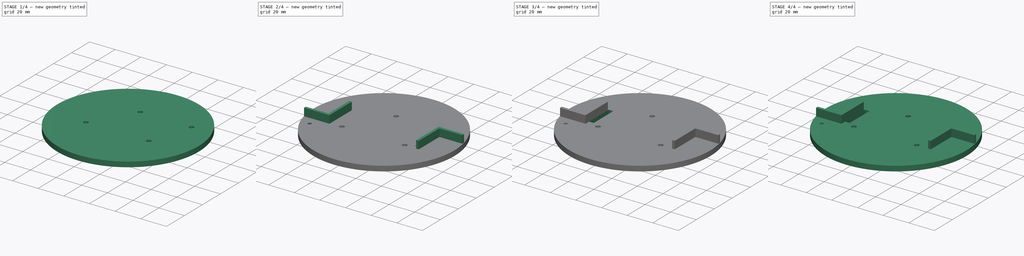
[diagram: build sequence overview — one tinted view per stage of 4, left to right]
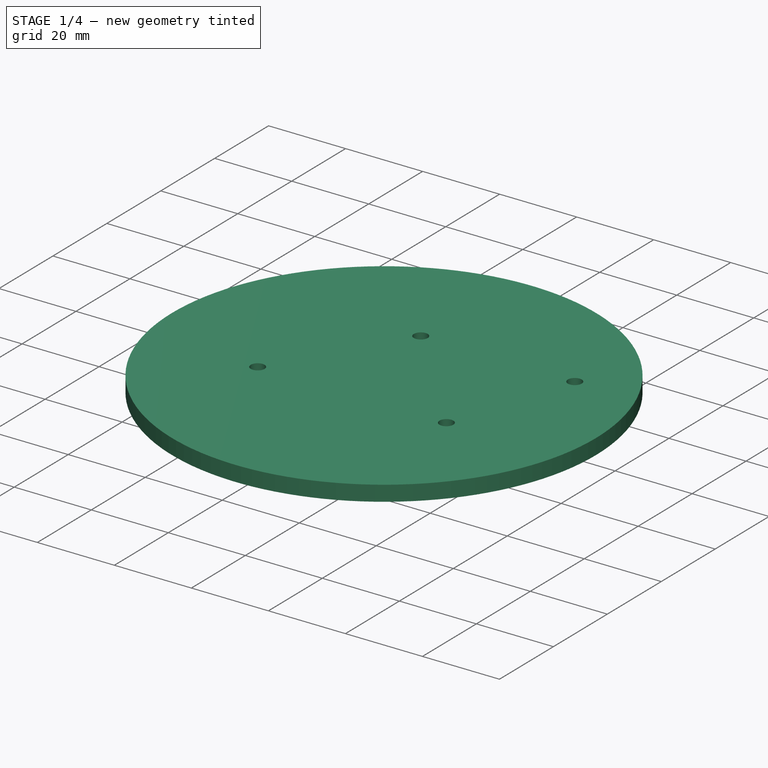
[diagram: stage 1 of 4 — iso view after this stage's code; geometry added in this stage tinted green]
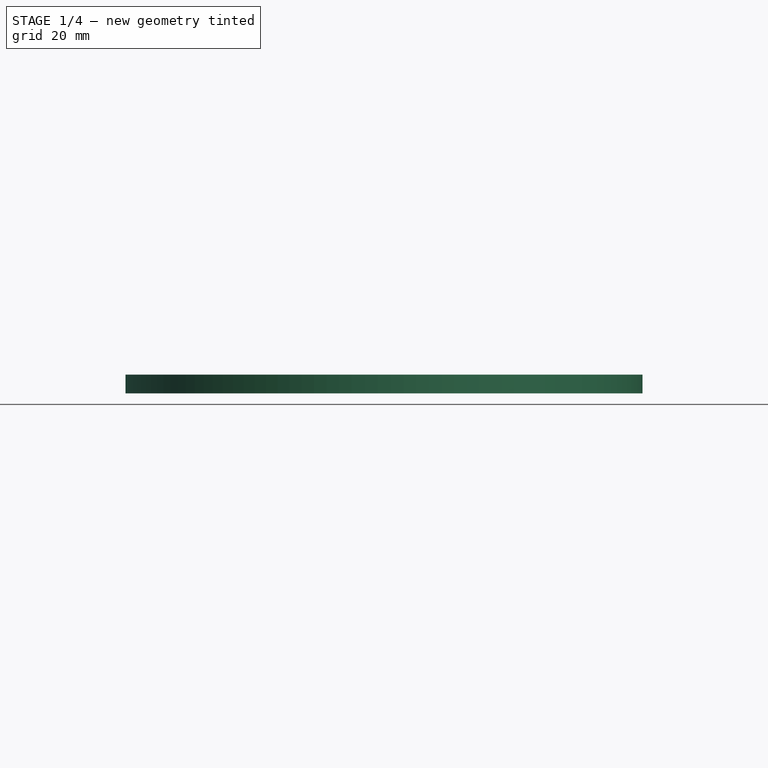
[diagram: stage 1 of 4 — front view after this stage's code; geometry added in this stage tinted green]
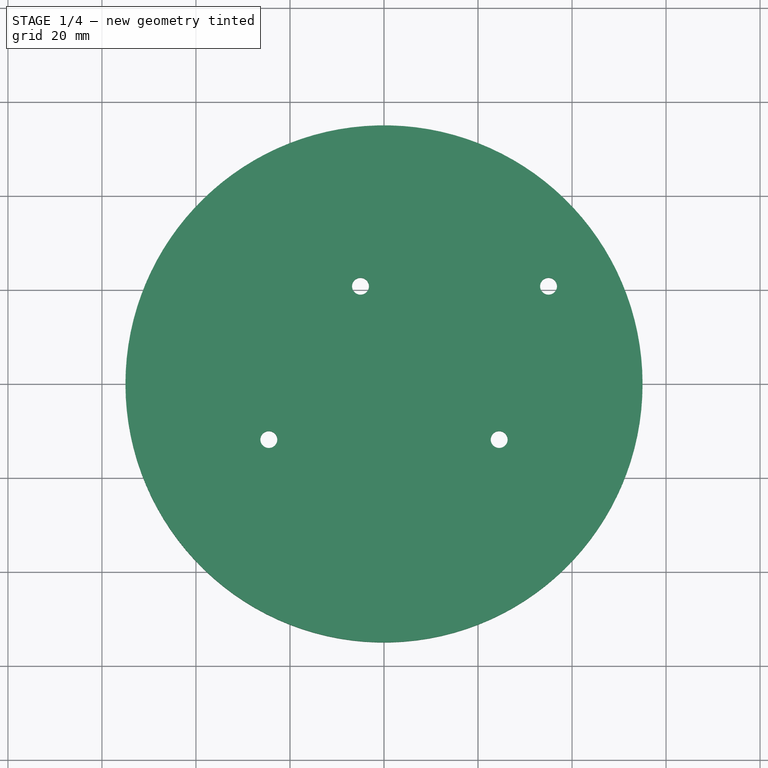
[diagram: stage 1 of 4 — top view after this stage's code; geometry added in this stage tinted green]
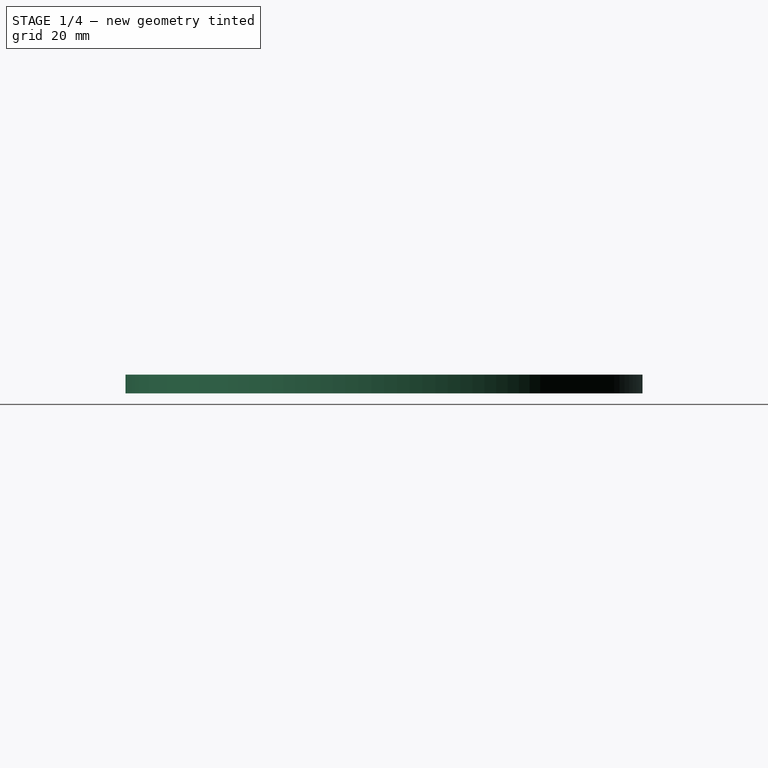
[diagram: stage 1 of 4 — right view after this stage's code; geometry added in this stage tinted green]
FCSTD DOCUMENT  (FreeCAD 0.21R33668 +26 (Git))
Label: board_bot
License: All rights reserved
LicenseURL: https://en.wikipedia.org/wiki/All_rights_reserved
objects: Sketcher::SketchObject×5, PartDesign::Fillet×4, PartDesign::Pocket×3, PartDesign::Pad×2, PartDesign::Mirrored×1, PartDesign::Body×1
note: 25 computed .brp shape members not serialized (recipe doc carries the construction recipe); baked Part::Feature solids carry a one-line shape summary decoded from their .brp

FEATURE [Sketcher::SketchObject] Sketch
  FullyConstrained = false
  MapMode = 5
  Support = -> [XY_Plane]
  sketch-geometry (2):
    g0: Circle CenterX=0 CenterY=0 CenterZ=0 NormalX=0 NormalY=0 NormalZ=1 AngleXU=0 Radius=55
    g1: GeomPoint X=-46.4818 Y=29.4015 Z=0
  constraints (3):
    c: Coincident(g0,g-1)
    c: PointOnObject(g1,g0)
    c: Distance(g1,g0) = 55
FEATURE [PartDesign::Pad] Pad
  Direction = (0,0,1)
  Length = 4
  Length2 = 10
  Profile = -> Sketch
  ReferenceAxis = -> Sketch [N_Axis]
  Type = 0
FEATURE [Sketcher::SketchObject] Sketch001
  FullyConstrained = false
  MapMode = 5
  Placement = pos=(0,0,4) rot=(0,0,1;0rad)
  Support = -> [Pad]
  sketch-geometry (27):
    g0: LineSegment StartX=35.5 StartY=11 StartZ=0 EndX=35.5 EndY=-54 EndZ=0
    g1: LineSegment StartX=35.5 StartY=-54 StartZ=0 EndX=55 EndY=-54 EndZ=0
    g2: LineSegment StartX=55 StartY=-54 StartZ=0 EndX=55 EndY=11 EndZ=0
    g3: LineSegment StartX=55 StartY=11 StartZ=0 EndX=35.5 EndY=11 EndZ=0
    g4: GeomPoint X=35.5 Y=0 Z=0
    g5: LineSegment StartX=0 StartY=0 StartZ=0 EndX=35.5 EndY=0 EndZ=0
    g6: LineSegment StartX=33.5 StartY=0 StartZ=0 EndX=33.5 EndY=13 EndZ=0
    g7: LineSegment StartX=33.5 StartY=13 StartZ=0 EndX=53.3454 EndY=13 EndZ=0
    g8: LineSegment StartX=53.3454 StartY=13 StartZ=0 EndX=53.3454 EndY=11 EndZ=0
    g9: LineSegment StartX=53.3454 StartY=11 StartZ=0 EndX=35.5 EndY=11 EndZ=0
    g10: LineSegment StartX=35.5 StartY=11 StartZ=0 EndX=35.5 EndY=-0.0056844 EndZ=0
    g11: LineSegment StartX=-55 StartY=54 StartZ=0 EndX=-35.5 EndY=54 EndZ=0
    g12: LineSegment StartX=-35.5 StartY=54 StartZ=0 EndX=-35.5 EndY=-11 EndZ=0
    g13: LineSegment StartX=-35.5 StartY=-11 StartZ=0 EndX=-55 EndY=-11 EndZ=0
    g14: LineSegment StartX=-55 StartY=-11 StartZ=0 EndX=-55 EndY=54 EndZ=0
    g15: LineSegment StartX=-35.5 StartY=0 StartZ=0 EndX=0 EndY=0 EndZ=0
    g16: LineSegment StartX=-33.5 StartY=0 StartZ=0 EndX=-33.5 EndY=-13 EndZ=0
    g17: LineSegment StartX=-33.5 StartY=-13 StartZ=0 EndX=-53.2936 EndY=-13 EndZ=0
    g18: LineSegment StartX=-53.2936 StartY=-13 StartZ=0 EndX=-53.2936 EndY=-11 EndZ=0
    g19: LineSegment StartX=-53.2936 StartY=-11 StartZ=0 EndX=-35.5 EndY=-11 EndZ=0
    g20: LineSegment StartX=-35.5 StartY=-11 StartZ=0 EndX=-35.5 EndY=0.00121246 EndZ=0
    g21: LineSegment StartX=-33.5 StartY=0 StartZ=0 EndX=-33.5 EndY=12 EndZ=0
    g22: LineSegment StartX=-35.5 StartY=0.00121246 StartZ=0 EndX=-35.5 EndY=12 EndZ=0
    g23: LineSegment StartX=-35.5 StartY=12 StartZ=0 EndX=-33.5 EndY=12 EndZ=0
    g24: LineSegment StartX=33.5 StartY=0 StartZ=0 EndX=33.5 EndY=-12 EndZ=0
    g25: LineSegment StartX=35.5 StartY=-0.0056844 StartZ=0 EndX=35.5 EndY=-12 EndZ=0
    g26: LineSegment StartX=33.5 StartY=-12 StartZ=0 EndX=35.5 EndY=-12 EndZ=0
  constraints (73):
    c: Vertical(g0)
    c: Coincident(g1,g0)
    c: Horizontal(g1)
    c: Coincident(g2,g1)
    c: Vertical(g2)
    c: Coincident(g3,g2)
    c: Coincident(g3,g0)
    c: Horizontal(g3)
    c: Distance(g3) = 19.5
    c: Distance(g2) = 65
    c: PointOnObject(g4,g0)
    c: Distance(g0,g4) = 11
    c: Coincident(g5,g-1)
    c: Coincident(g5,g4)
    c: Horizontal(g5)
    c: Distance(g5) = 35.5
    c: PointOnObject(g6,g5)
    c: Vertical(g6)
    c: Coincident(g7,g6)
    c: Horizontal(g7)
    c: Coincident(g8,g7)
    c: PointOnObject(g8,g3)
    c: Vertical(g8)
    c: Coincident(g9,g8)
    c: Coincident(g9,g0)
    c: Coincident(g10,g9)
    c: Distance(g8) = 2
    c: Coincident(g11,g12)
    c: Coincident(g12,g13)
    c: Coincident(g13,g14)
    c: Coincident(g14,g11)
    c: Horizontal(g11)
    c: Horizontal(g13)
    c: Vertical(g12)
    c: Vertical(g14)
    c: Distance(g14) = 65
    c: Distance(g11) = 19.5
    c: PointOnObject(g15,g12)
    c: Coincident(g15,g5)
    c: Horizontal(g15)
    c: Distance(g15) = 35.5
    c: Distance(g15,g12) = 11
    c: PointOnObject(g16,g15)
    c: Vertical(g16)
    c: Coincident(g17,g16)
    c: Horizontal(g17)
    c: Coincident(g18,g17)
    c: PointOnObject(g18,g13)
    c: Vertical(g18)
    c: Distance(g18) = 2
    c: Coincident(g19,g18)
    c: Coincident(g19,g12)
    c: Coincident(g20,g19)
    c: Coincident(g21,g16)
    c: Vertical(g21)
    c: Coincident(g22,g20)
    c: PointOnObject(g22,g12)
    c: Vertical(g22)
    c: Distance(g20,g16) = 2
    c: Coincident(g23,g22)
    c: Coincident(g23,g21)
    c: Horizontal(g23)
    c: Distance(g21) = 12
    c: Distance(g6,g10) = 2
    c: Coincident(g24,g6)
    c: Vertical(g24)
    c: Coincident(g25,g10)
    c: PointOnObject(g25,g0)
    c: Vertical(g25)
    c: Coincident(g26,g24)
    c: Coincident(g26,g25)
    c: Horizontal(g26)
    c: Distance(g24) = 12
FEATURE [Sketcher::SketchObject] Sketch002
  FullyConstrained = false
  MapMode = 5
  Placement = pos=(0,0,4) rot=(0,0,1;0rad)
  sketch-geometry (29):
    g0: LineSegment StartX=-24.5 StartY=-11.8401 StartZ=0 EndX=24.5 EndY=-11.8401 EndZ=0
    g1: LineSegment StartX=24.5 StartY=-11.8401 StartZ=0 EndX=24.5 EndY=-69.8401 EndZ=0
    g2: LineSegment StartX=24.5 StartY=-69.8401 StartZ=0 EndX=-24.5 EndY=-69.8401 EndZ=0
    g3: LineSegment StartX=-24.5 StartY=-69.8401 StartZ=0 EndX=-24.5 EndY=-11.8401 EndZ=0
    g4: Circle CenterX=-24.5 CenterY=-11.8401 CenterZ=0 NormalX=0 NormalY=0 NormalZ=1 AngleXU=0 Radius=1.8
    g5: Circle CenterX=24.5 CenterY=-11.8401 CenterZ=0 NormalX=0 NormalY=0 NormalZ=1 AngleXU=0 Radius=1.8
    g6: GeomPoint X=24.1833 Y=-13.6121 Z=0
    g7: GeomPoint X=-24.493 Y=-13.6401 Z=0
    g8: LineSegment StartX=-24.5 StartY=-11.8401 StartZ=0 EndX=-24.5 EndY=15.1599 EndZ=0
    g9: LineSegment StartX=24.5 StartY=-11.8401 StartZ=0 EndX=24.5 EndY=15.1599 EndZ=0
    g10: LineSegment StartX=-24.5 StartY=15.1599 StartZ=0 EndX=24.5 EndY=15.1599 EndZ=0
    g11: LineSegment StartX=-10 StartY=67.775 StartZ=0 EndX=40 EndY=67.775 EndZ=0
    g12: LineSegment StartX=40 StartY=67.775 StartZ=0 EndX=40 EndY=15.775 EndZ=0
    g13: LineSegment StartX=40 StartY=15.775 StartZ=0 EndX=-10 EndY=15.775 EndZ=0
    g14: LineSegment StartX=-10 StartY=15.775 StartZ=0 EndX=-10 EndY=67.775 EndZ=0
    g15: LineSegment StartX=-5 StartY=60.775 StartZ=0 EndX=35 EndY=60.775 EndZ=0
    g16: LineSegment StartX=35 StartY=60.775 StartZ=0 EndX=35 EndY=20.775 EndZ=0
    g17: LineSegment StartX=35 StartY=20.775 StartZ=0 EndX=-5 EndY=20.775 EndZ=0
    g18: LineSegment StartX=-5 StartY=20.775 StartZ=0 EndX=-5 EndY=60.775 EndZ=0
    g19: GeomPoint X=-5 Y=15.775 Z=0
    g20: LineSegment StartX=-5 StartY=15.775 StartZ=0 EndX=-5 EndY=20.775 EndZ=0
    g21: Circle CenterX=-5 CenterY=20.775 CenterZ=0 NormalX=0 NormalY=0 NormalZ=1 AngleXU=0 Radius=1.8
    g22: Circle CenterX=35 CenterY=20.775 CenterZ=0 NormalX=0 NormalY=0 NormalZ=1 AngleXU=0 Radius=1.8
    g23: GeomPoint X=-4.69104 Y=19.0017 Z=0
    g24: GeomPoint X=35.3096 Y=19.0018 Z=0
    g25: LineSegment StartX=0 StartY=0 StartZ=0 EndX=24.5 EndY=0 EndZ=0
    g26: GeomPoint X=-5 Y=36.603 Z=0
    g27: GeomPoint X=0 Y=36.603 Z=0
    g28: LineSegment StartX=-5 StartY=36.603 StartZ=0 EndX=0 EndY=36.603 EndZ=0
  constraints (66):
    c: Coincident(g0,g1)
    c: Coincident(g1,g2)
    c: Coincident(g2,g3)
    c: Coincident(g3,g0)
    c: Horizontal(g0)
    c: Horizontal(g2)
    c: Vertical(g1)
    c: Vertical(g3)
    c: Distance(g1) = 58
    c: Distance(g0) = 49
    c: Coincident(g4,g0)
    c: Coincident(g5,g0)
    c: PointOnObject(g6,g5)
    c: PointOnObject(g7,g4)
    c: Distance(g4,g7) = 1.8
    c: Distance(g5,g6) = 1.8
    c: Coincident(g8,g4)
    c: Vertical(g8)
    c: Coincident(g9,g5)
    c: Vertical(g9)
    c: Coincident(g10,g8)
    c: Coincident(g10,g9)
    c: Horizontal(g10)
    c: Distance(g8) = 27
    c: Coincident(g11,g12)
    c: Coincident(g12,g13)
    c: Coincident(g13,g14)
    c: Coincident(g14,g11)
    c: Horizontal(g11)
    c: Horizontal(g13)
    c: Vertical(g12)
    c: Vertical(g14)
    c: Distance(g11) = 50
    c: Distance(g14) = 52
    c: Coincident(g15,g16)
    c: Coincident(g16,g17)
    c: Coincident(g17,g18)
    c: Coincident(g18,g15)
    c: Horizontal(g15)
    c: Horizontal(g17)
    c: Vertical(g16)
    c: Vertical(g18)
    c: Distance(g15) = 40
    c: Distance(g18) = 40
    c: PointOnObject(g19,g13)
    c: Distance(g13,g19) = 5
    c: Coincident(g20,g19)
    c: Coincident(g20,g17)
    c: Vertical(g20)
    c: Distance(g20) = 5
    c: Coincident(g21,g17)
    c: Coincident(g22,g16)
    c: PointOnObject(g23,g21)
    c: PointOnObject(g24,g22)
    c: Distance(g21,g23) = 1.8
    c: Distance(g22,g24) = 1.8
    c: Coincident(g25,g-1)
    c: PointOnObject(g25,g9)
    c: Horizontal(g25)
    c: Distance(g25) = 24.5
    c: PointOnObject(g26,g18)
    c: PointOnObject(g27,g-2)
    c: Coincident(g28,g26)
    c: Coincident(g28,g27)
    c: Horizontal(g28)
    c: Distance(g28) = 5
FEATURE [PartDesign::Pocket] Pocket
  BaseFeature = -> Pad
  Direction = (0,0,-1)
  Length = 5
  Length2 = 5
  Profile = -> Sketch002
  ReferenceAxis = -> Sketch002 [N_Axis]
  Type = 0
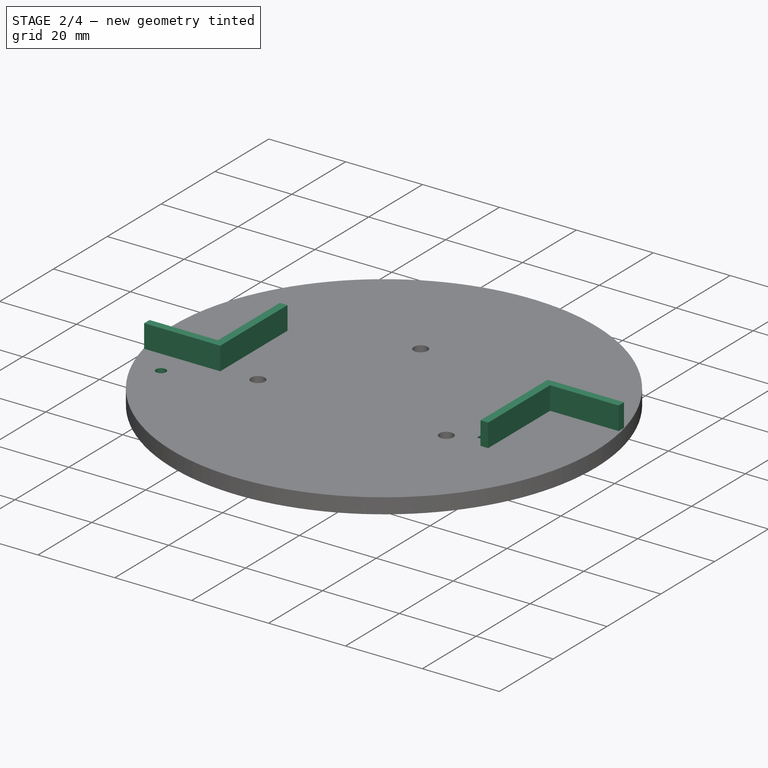
[diagram: stage 2 of 4 — iso view after this stage's code; geometry added in this stage tinted green]
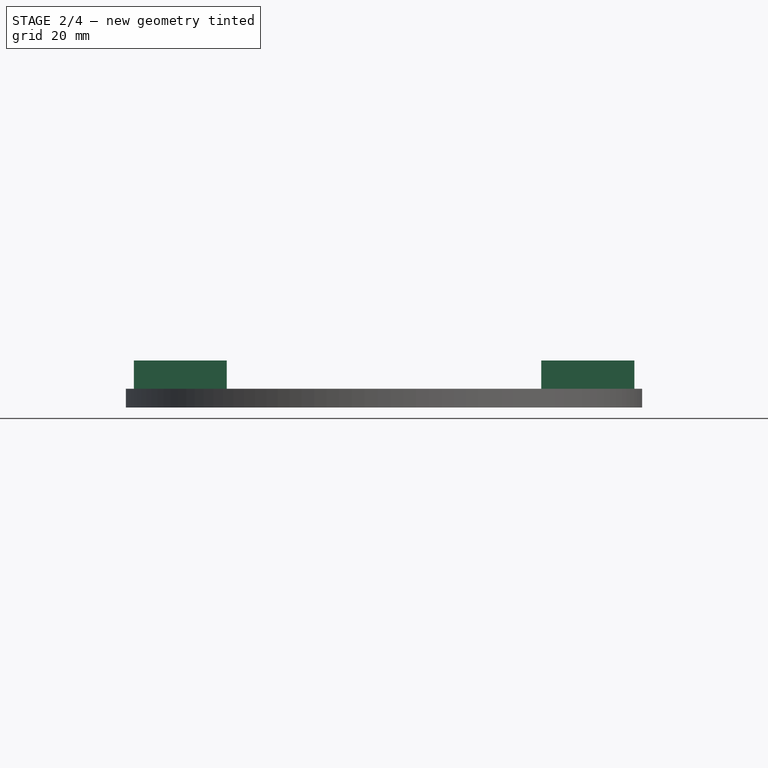
[diagram: stage 2 of 4 — front view after this stage's code; geometry added in this stage tinted green]
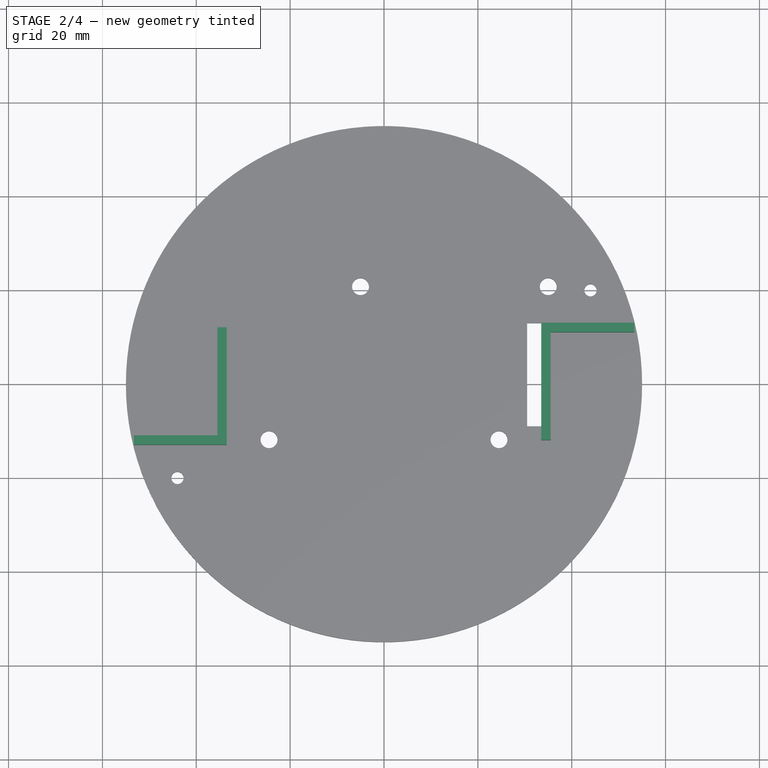
[diagram: stage 2 of 4 — top view after this stage's code; geometry added in this stage tinted green]
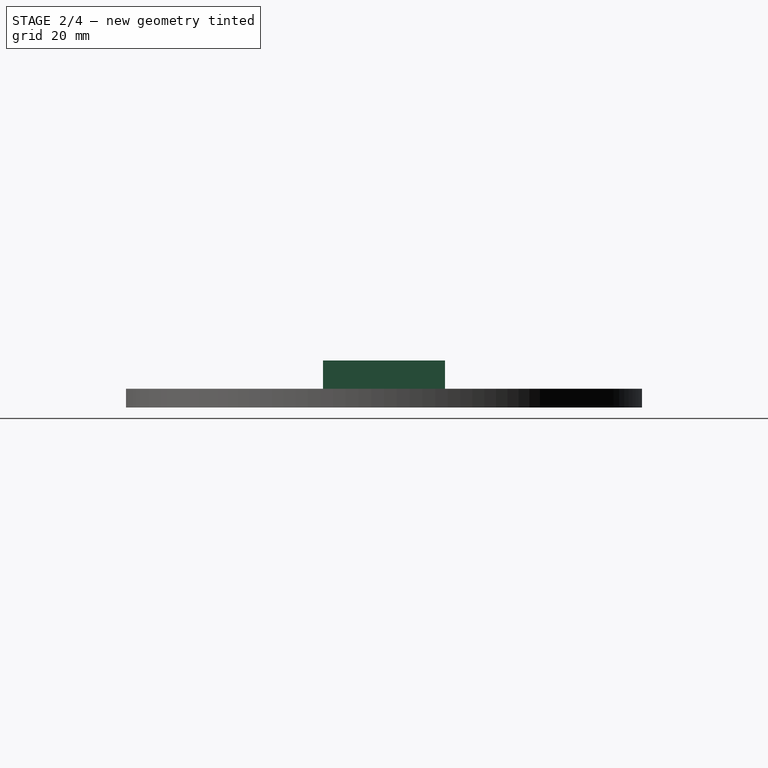
[diagram: stage 2 of 4 — right view after this stage's code; geometry added in this stage tinted green]
FEATURE [PartDesign::Pad] Pad001
  BaseFeature = -> Pocket
  Direction = (0,0,1)
  Length = 6
  Length2 = 10
  Profile = -> Sketch001
  ReferenceAxis = -> Sketch001 [N_Axis]
  Type = 0
FEATURE [Sketcher::SketchObject] Sketch003
  FullyConstrained = false
  MapMode = 5
  Placement = pos=(0,0,4) rot=(0,0,1;0rad)
  Support = -> [Pad001]
  sketch-geometry (10):
    g0: Circle CenterX=44 CenterY=20 CenterZ=0 NormalX=0 NormalY=0 NormalZ=1 AngleXU=0 Radius=5
    g1: Circle CenterX=-44 CenterY=-20 CenterZ=0 NormalX=0 NormalY=0 NormalZ=1 AngleXU=0 Radius=5
    g2: GeomPoint X=-39.0947 Y=-19.0316 Z=0
    g3: GeomPoint X=47.6682 Y=23.3977 Z=0
    g4: LineSegment StartX=0 StartY=-20 StartZ=0 EndX=-44 EndY=-20 EndZ=0
    g5: LineSegment StartX=0 StartY=20 StartZ=0 EndX=44 EndY=20 EndZ=0
    g6: Circle CenterX=-44 CenterY=-20 CenterZ=0 NormalX=0 NormalY=0 NormalZ=1 AngleXU=0 Radius=1.3
    g7: GeomPoint X=-43.3125 Y=-18.8967 Z=0
    g8: Circle CenterX=44 CenterY=20 CenterZ=0 NormalX=0 NormalY=0 NormalZ=1 AngleXU=0 Radius=1.3
    g9: GeomPoint X=43.0923 Y=20.9307 Z=0
  constraints (20):
    c: PointOnObject(g2,g1)
    c: PointOnObject(g3,g0)
    c: Distance(g3,g0) = 5
    c: Distance(g1,g2) = 5
    c: PointOnObject(g4,g-2)
    c: Coincident(g4,g1)
    c: Horizontal(g4)
    c: PointOnObject(g5,g-2)
    c: Coincident(g5,g0)
    c: Horizontal(g5)
    c: Distance(g4) = 44
    c: Distance(g5) = 44
    c: Distance(g5,g-1) = 20
    c: Distance(g-1,g4) = 20
    c: Coincident(g6,g1)
    c: PointOnObject(g7,g6)
    c: Coincident(g8,g0)
    c: PointOnObject(g9,g8)
    c: Distance(g9,g8) = 1.3
    c: Distance(g7,g6) = 1.3
FEATURE [Sketcher::SketchObject] Sketch004
  FullyConstrained = true
  MapMode = 5
  Placement = pos=(0,0,4) rot=(0,0,1;0rad)
  sketch-geometry (5):
    g0: LineSegment StartX=30.5 StartY=13 StartZ=0 EndX=33.5 EndY=13 EndZ=0
    g1: LineSegment StartX=33.5 StartY=13 StartZ=0 EndX=33.5 EndY=-9 EndZ=0
    g2: LineSegment StartX=33.5 StartY=-9 StartZ=0 EndX=30.5 EndY=-9 EndZ=0
    g3: LineSegment StartX=30.5 StartY=-9 StartZ=0 EndX=30.5 EndY=13 EndZ=0
    g4: LineSegment StartX=0 StartY=0 StartZ=0 EndX=30.5 EndY=0 EndZ=0
  constraints (15):
    c: Coincident(g0,g1)
    c: Coincident(g1,g2)
    c: Coincident(g2,g3)
    c: Coincident(g3,g0)
    c: Horizontal(g0)
    c: Horizontal(g2)
    c: Vertical(g1)
    c: Vertical(g3)
    c: Distance(g1) = 22
    c: Distance(g0) = 3
    c: Coincident(g4,g-1)
    c: PointOnObject(g4,g3)
    c: Horizontal(g4)
    c: Distance(g4) = 30.5
    c: Distance(g0,g4) = 13
FEATURE [PartDesign::Pocket] Pocket001
  BaseFeature = -> Pad001
  Direction = (0,0,-1)
  Length = 5
  Length2 = 5
  Profile = -> Sketch003
  ReferenceAxis = -> Sketch003 [N_Axis]
  Type = 0
FEATURE [PartDesign::Pocket] Pocket002
  BaseFeature = -> Pocket001
  Direction = (0,0,-1)
  Length = 5
  Length2 = 5
  Profile = -> Sketch004
  ReferenceAxis = -> Sketch004 [N_Axis]
  Type = 0
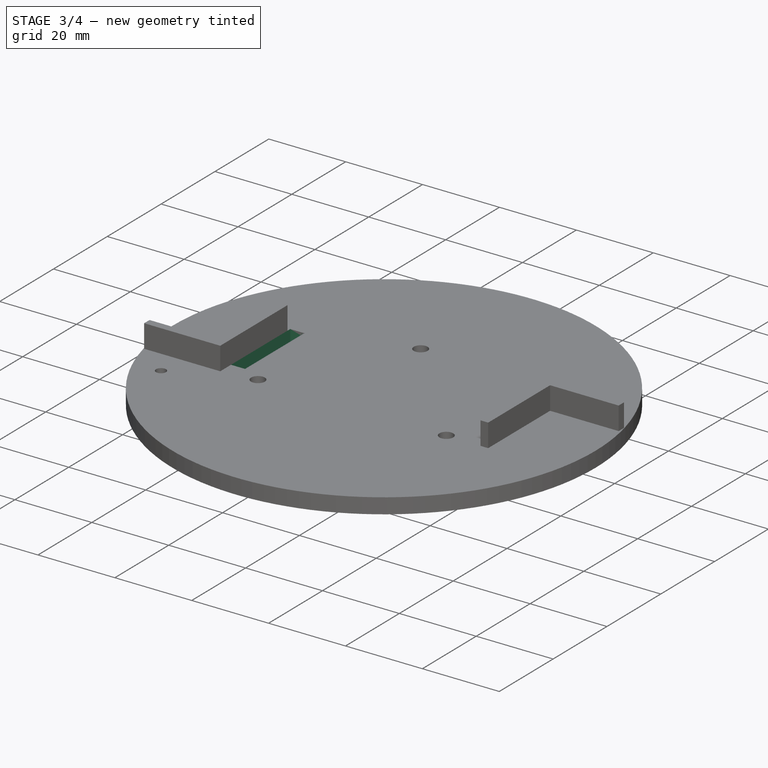
[diagram: stage 3 of 4 — iso view after this stage's code; geometry added in this stage tinted green]
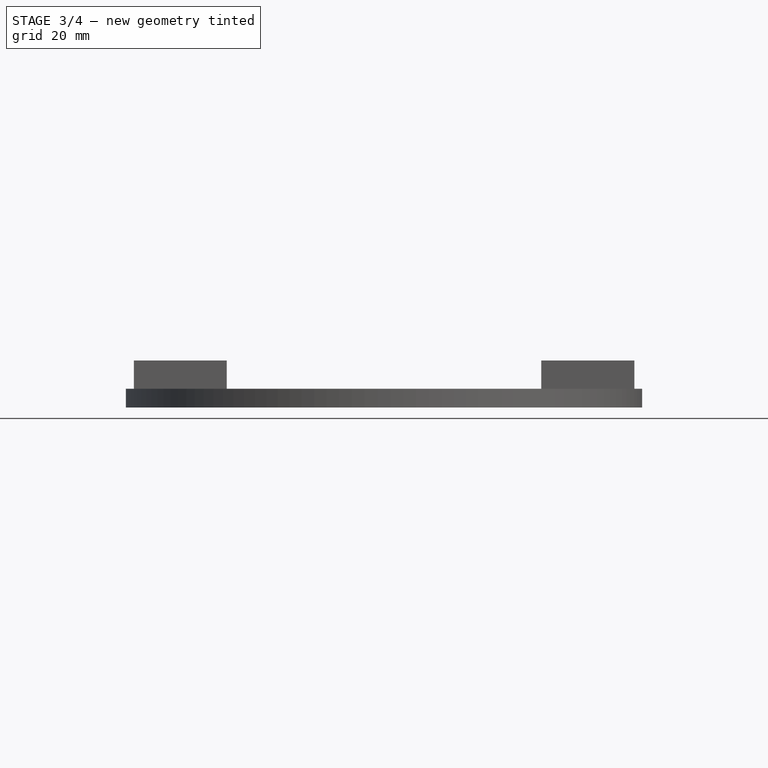
[diagram: stage 3 of 4 — front view after this stage's code; geometry added in this stage tinted green]
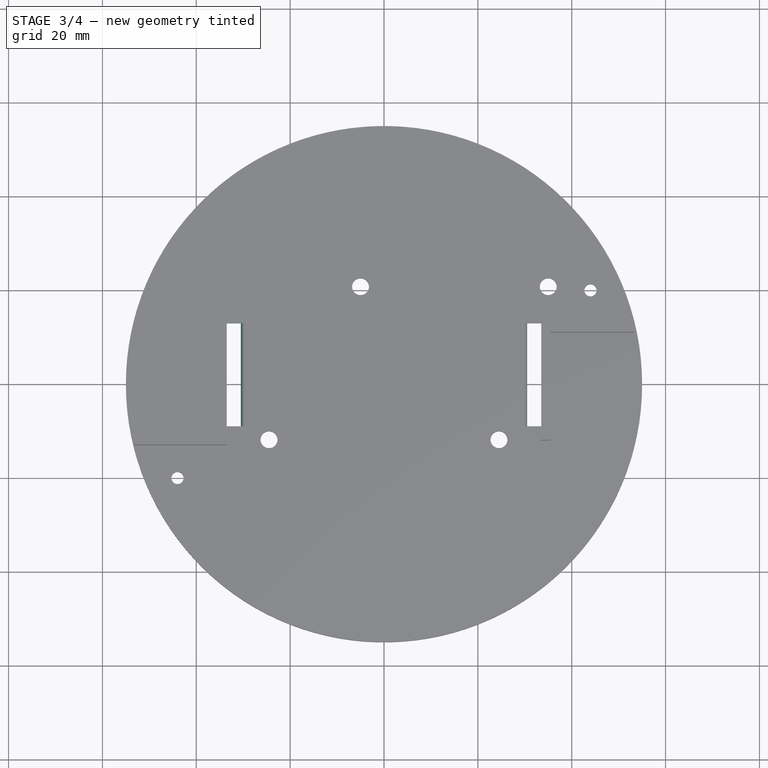
[diagram: stage 3 of 4 — top view after this stage's code; geometry added in this stage tinted green]
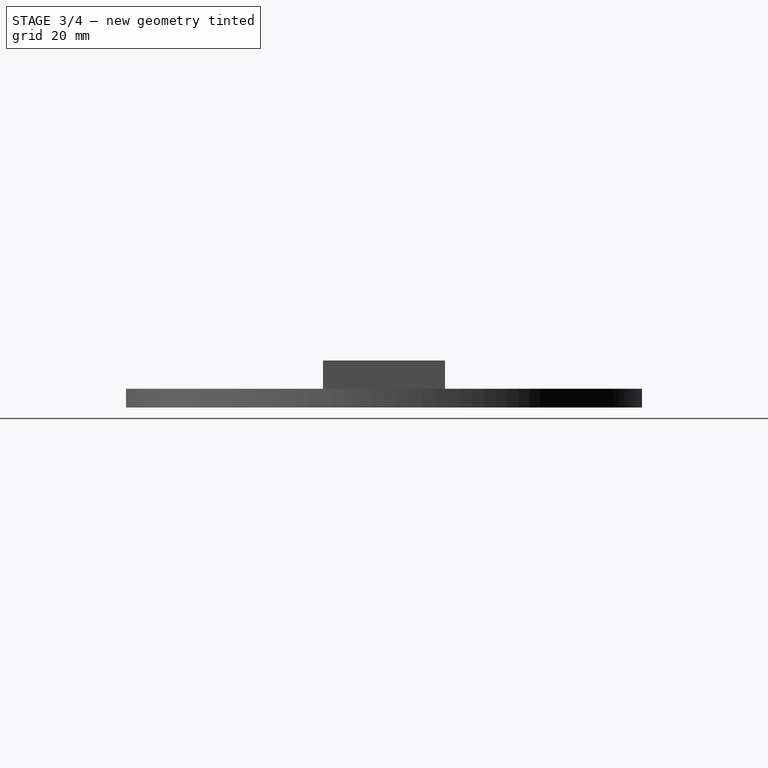
[diagram: stage 3 of 4 — right view after this stage's code; geometry added in this stage tinted green]
FEATURE [PartDesign::Mirrored] Mirrored
  BaseFeature = -> Pocket002
  MirrorPlane = -> Sketch004 [V_Axis]
  Originals = -> [Pocket002]
FEATURE [PartDesign::Fillet] Fillet
  Base = -> Mirrored [Edge42]
  BaseFeature = -> Mirrored
  Radius = 1
  SupportTransform = false
  UseAllEdges = false
FEATURE [PartDesign::Fillet] Fillet001
  Base = -> Fillet [Edge30]
  BaseFeature = -> Fillet
  Radius = 1
  SupportTransform = false
  UseAllEdges = false
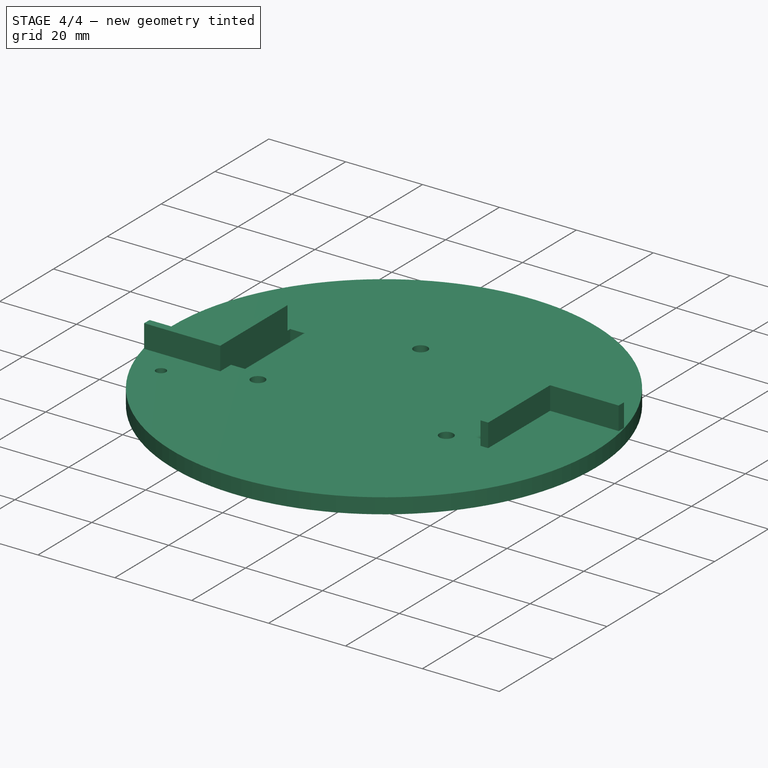
[diagram: stage 4 of 4 — iso view after this stage's code; geometry added in this stage tinted green]
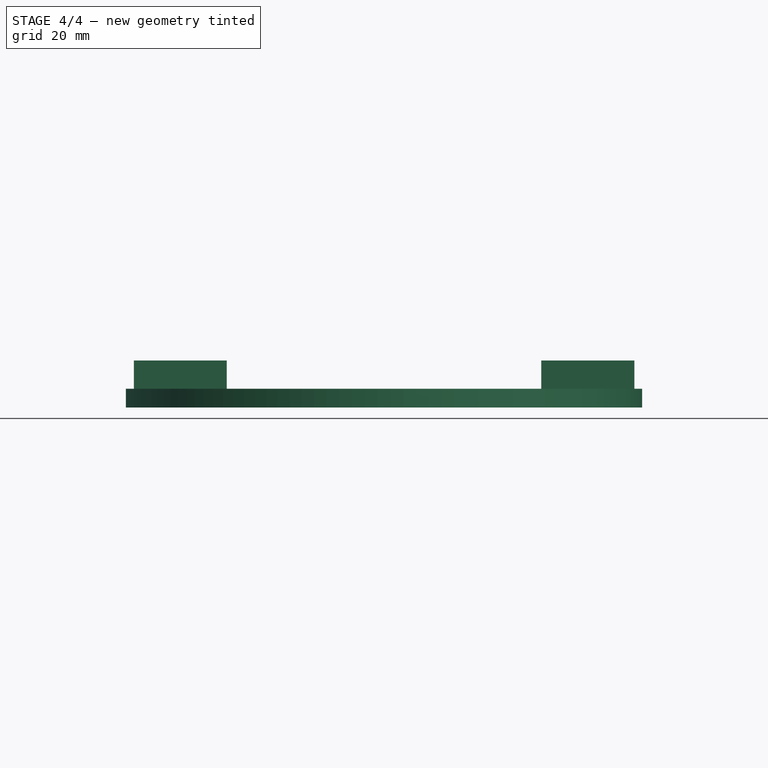
[diagram: stage 4 of 4 — front view after this stage's code; geometry added in this stage tinted green]
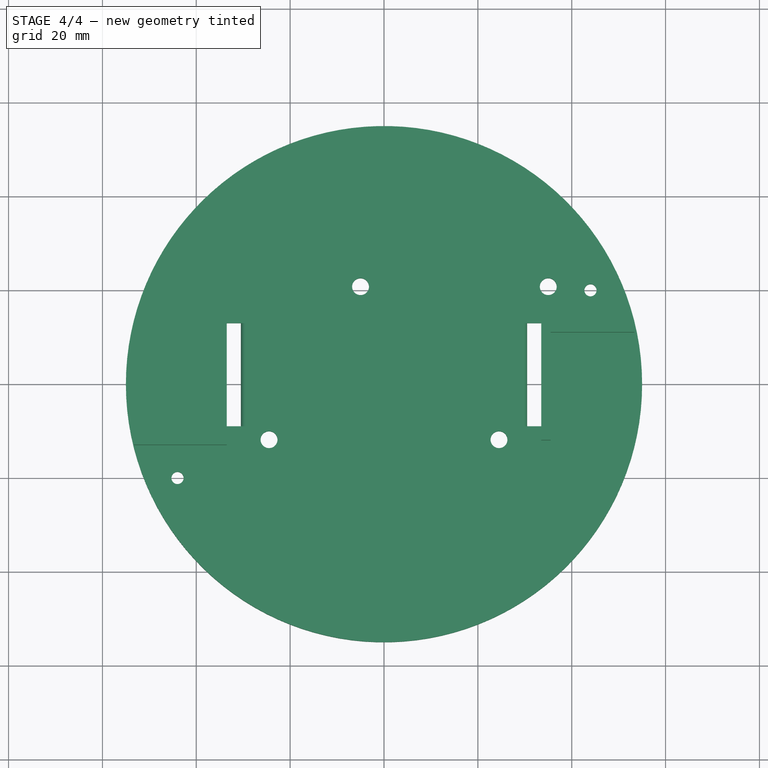
[diagram: stage 4 of 4 — top view after this stage's code; geometry added in this stage tinted green]
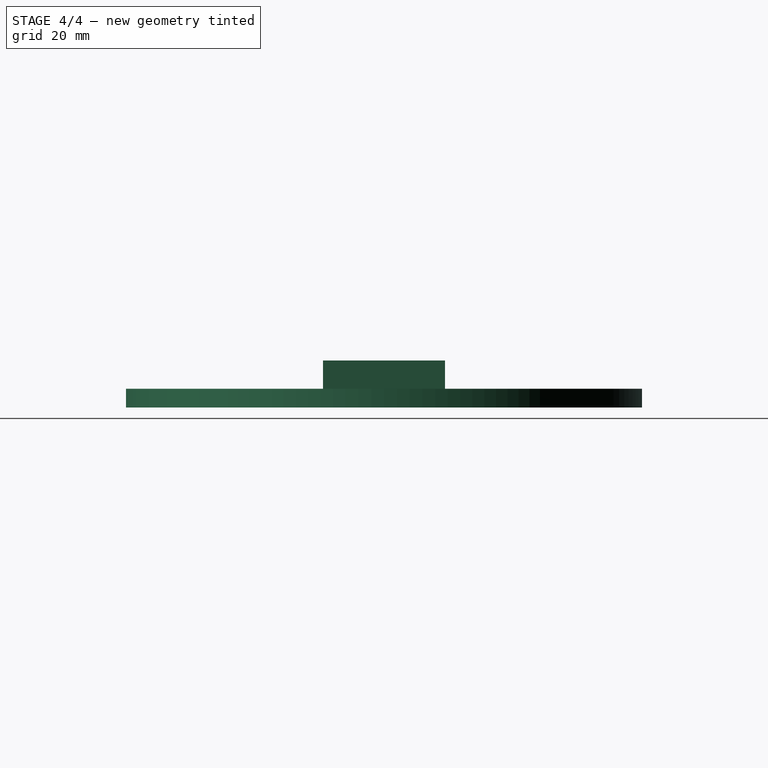
[diagram: stage 4 of 4 — right view after this stage's code; geometry added in this stage tinted green]
FEATURE [PartDesign::Fillet] Fillet002
  Base = -> Fillet001 [Edge102]
  BaseFeature = -> Fillet001
  Radius = 1
  SupportTransform = false
  UseAllEdges = false
FEATURE [PartDesign::Fillet] Fillet003
  Base = -> Fillet002 [Edge24]
  BaseFeature = -> Fillet002
  Radius = 1
  SupportTransform = false
  UseAllEdges = false
FEATURE [PartDesign::Body] Body
  Group = -> [Sketch,Pad,Sketch001,Sketch002,Pocket,Pad001,Sketch003,Sketch004,Pocket001,Pocket002,Mirrored,Fillet,Fillet001,Fillet002,Fillet003]
  Origin = -> Origin
  Tip = -> Fillet003
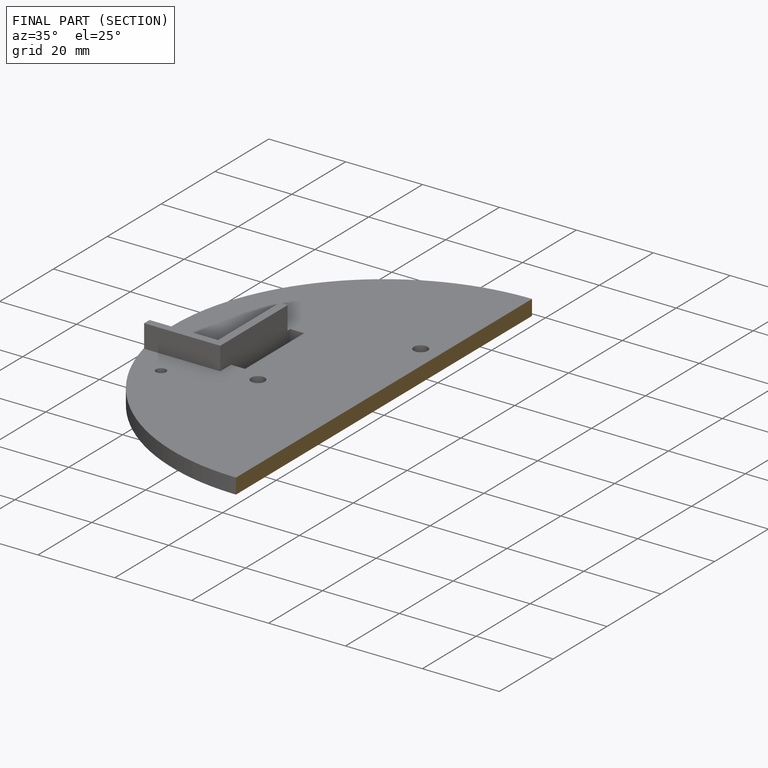
[diagram: finished part — half-section view (interior)]
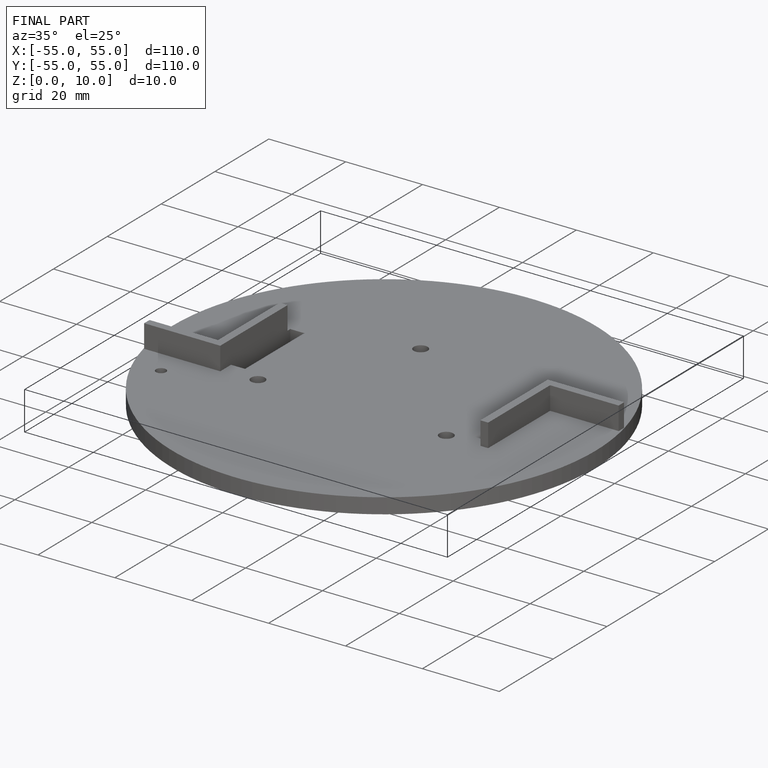
[diagram: finished part — iso view with bounding-box wireframe]
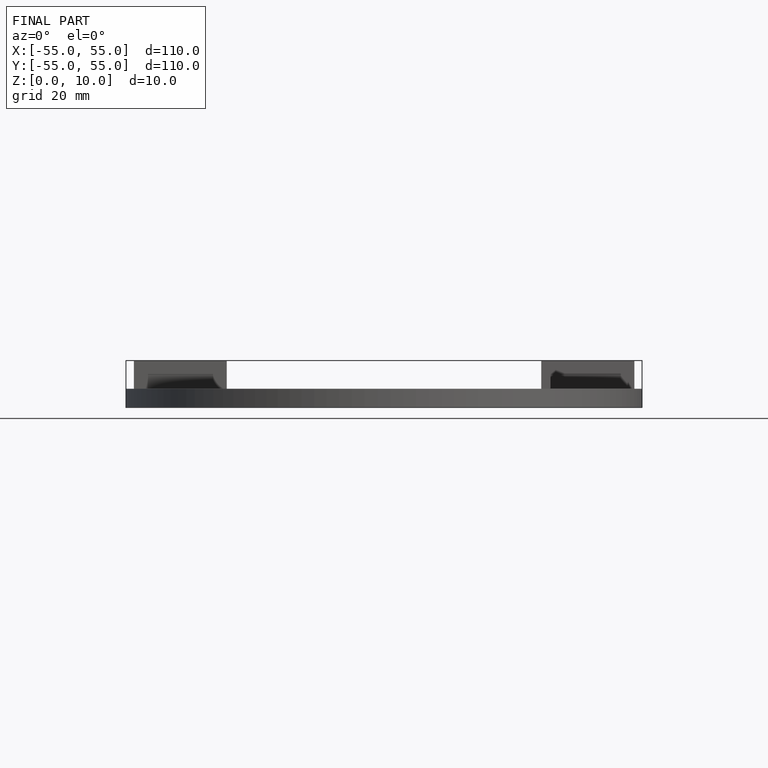
[diagram: finished part — front view with bounding-box wireframe]
